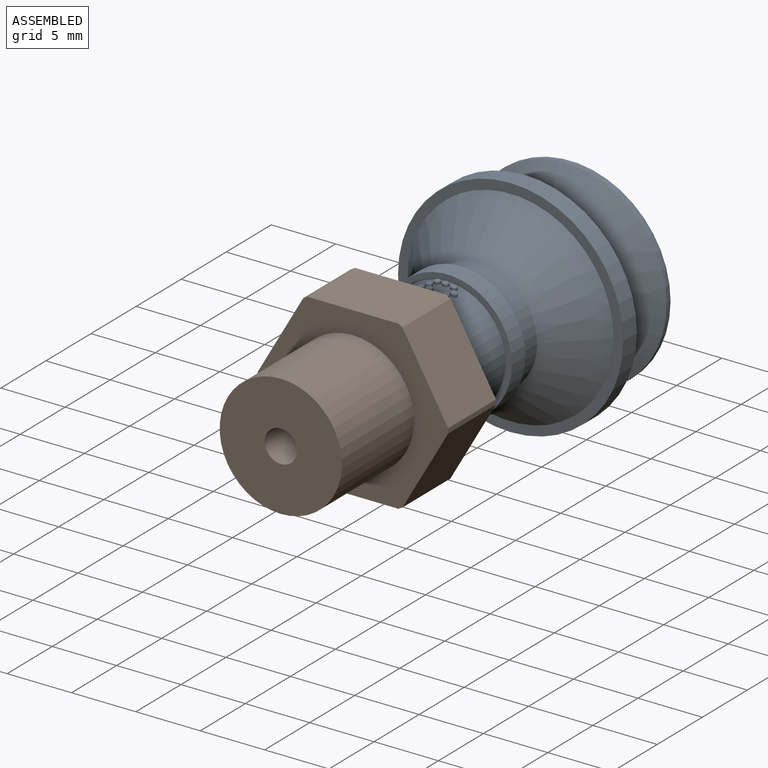
[diagram: assembled view]
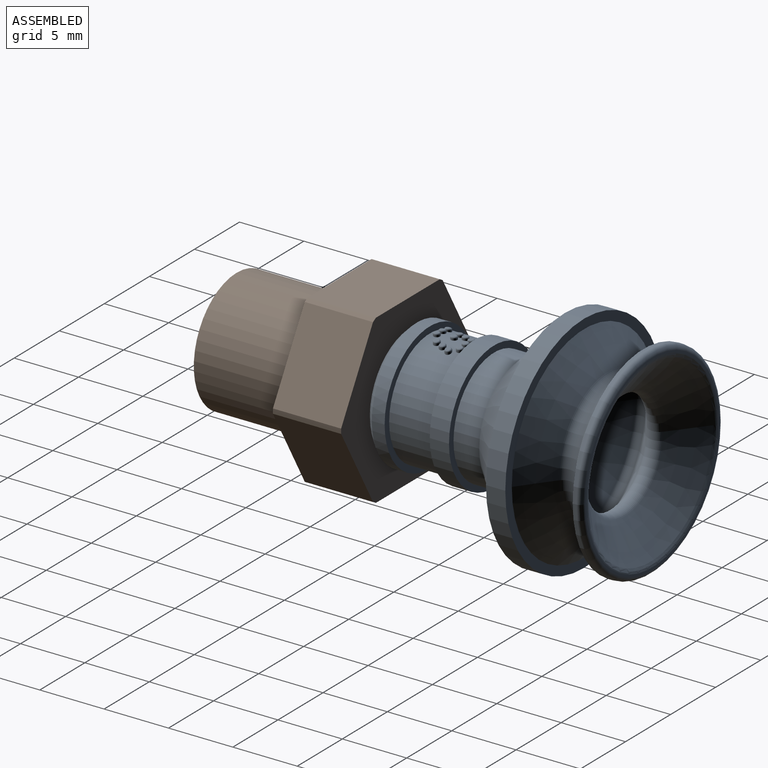
[diagram: assembled view, second angle]
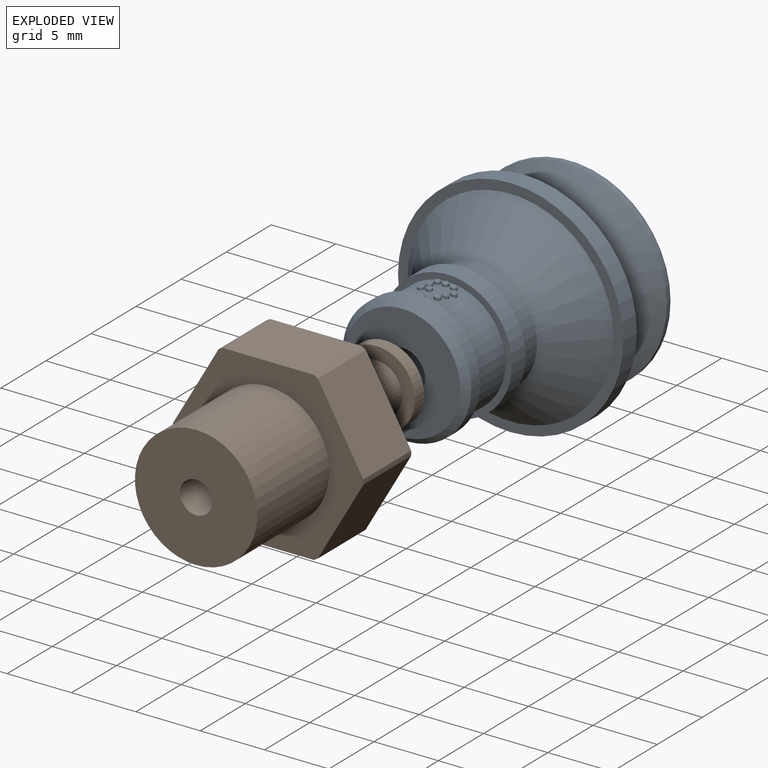
[diagram: exploded view]
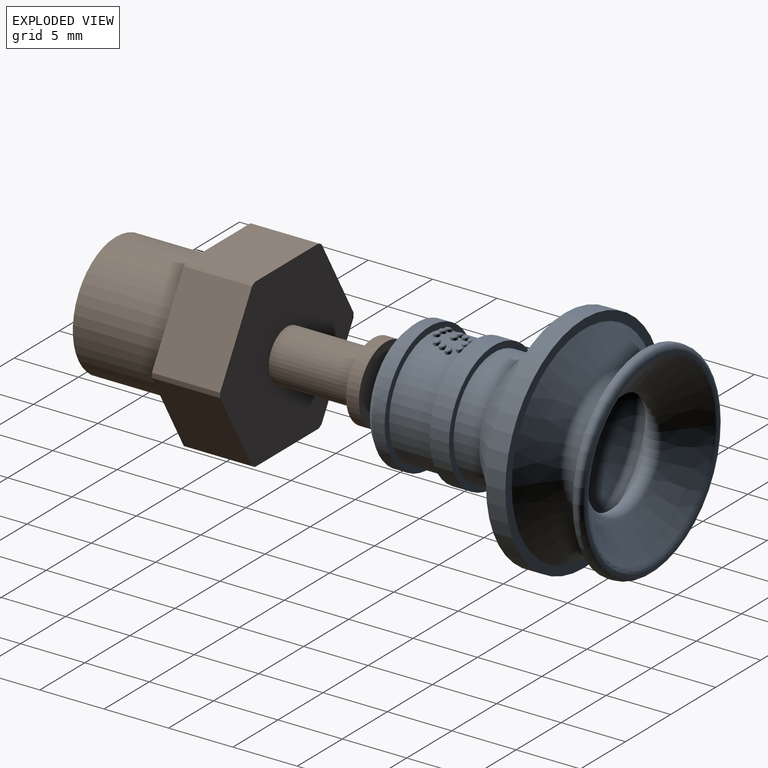
[diagram: exploded view, second angle]
ASSEMBLY  parts=2 mates=2
PART A: 78 faces, bbox 17.5x17.5x18.8 mm
  f0: torus R=6mm, axis (0,0,-1), area 52mm2, adj f31,f33
  f1: torus R=4.8mm, axis (0,0,-1), area 38.1mm2, adj f37,f40
  f2: bspline ~0.51x0.3mm, area 0.1mm2, adj f20,f60,f77
  f3: bspline ~0.5x0.27mm, area 0.1mm2, adj f21,f61,f76
  f4: bspline ~0.5x0.27mm, area 0.1mm2, adj f22,f62,f75
  f5: bspline ~0.5x0.27mm, area 0.1mm2, adj f23,f63,f74
  f6: bspline ~0.5x0.28mm, area 0.1mm2, adj f25,f65,f73
  f7: bspline ~0.5x0.26mm, area 0.1mm2, adj f16,f56,f72
  f8: bspline ~0.51x0.33mm, area 0.1mm2, adj f15,f55,f71
  f9: bspline ~0.51x0.32mm, area 0.1mm2, adj f17,f57,f70
  f10: bspline ~0.51x0.3mm, area 0.1mm2, adj f14,f54,f69
  f11: bspline ~0.5x0.25mm, area 0.1mm2, adj f18,f58,f68
  f12: bspline ~0.5x0.27mm, area 0.1mm2, adj f19,f59,f67
  f13: bspline ~0.5x0.29mm, area 0.1mm2, adj f24,f64,f66
  f14: cylinder r=0.25mm len=0.5mm, axis (0,1,0), area 0.2mm2, adj f10,f32,f69
  f15: cylinder r=0.25mm len=0.5mm, axis (0,1,0), area 0.2mm2, adj f8,f32,f71
  f16: cylinder r=0.25mm len=0.5mm, axis (0,1,0), area 0.2mm2, adj f7,f32,f72
  f17: cylinder r=0.25mm len=0.5mm, axis (0,1,0), area 0.2mm2, adj f9,f32,f70
  f18: cylinder r=0.25mm len=0.5mm, axis (0,1,0), area 0.2mm2, adj f11,f32,f68
  f19: cylinder r=0.25mm len=0.5mm, axis (0,1,0), area 0.2mm2, adj f12,f32,f67
  f20: cylinder r=0.25mm len=0.5mm, axis (0,1,0), area 0.2mm2, adj f2,f32,f77
  f21: cylinder r=0.25mm len=0.5mm, axis (0,1,0), area 0.2mm2, adj f3,f32,f76
  f22: cylinder r=0.25mm len=0.5mm, axis (0,1,0), area 0.2mm2, adj f4,f32,f75
  f23: cylinder r=0.25mm len=0.5mm, axis (0,1,0), area 0.2mm2, adj f5,f32,f74
  f24: cylinder r=0.25mm len=0.5mm, axis (0,1,0), area 0.2mm2, adj f13,f32,f66
  f25: cylinder r=0.25mm len=0.5mm, axis (0,1,0), area 0.2mm2, adj f6,f32,f73
  f26: cylinder r=1.75mm len=6.5mm, axis (0,0,-1), area 71.5mm2, adj f42,f46
  f27: cone r=8mm half-angle=45deg, axis (0,0,-1), area 194.4mm2, adj f28,f53
  f28: cylinder r=4.5mm len=9mm, axis (0,0,-1), area 56.5mm2, adj f27,f52
  f29: cylinder r=8.75mm len=17.5mm, axis (0,0,-1), area 82.5mm2, adj f51,f53
  f30: cylinder r=5mm len=10mm, axis (0,0,-1), area 47.1mm2, adj f50,f52
  f31: cone r=5.52mm half-angle=53.4deg, axis (0,0,1), area 132.8mm2, adj f0,f51
  f32: cylinder r=4.5mm len=9mm, axis (0,0,-1), area 96.9mm2, adj f14,f15,f16,f17,f18,f19,f20,f21
  f33: cone r=7.85mm half-angle=58deg, axis (0,0,-1), area 113.1mm2, adj f0,f35
  f34: cylinder r=5mm len=10mm, axis (0,0,-1), area 31.4mm2, adj f47,f48,f49
  f35: cylinder r=7.85mm len=15.7mm, axis (0,0,-1), area 14.8mm2, adj f33,f36
  f36: torus R=7.45mm, axis (0,0,-1), area 30.4mm2, adj f35,f45
  f37: cone r=4.31mm half-angle=52.2deg, axis (0,0,-1), area 117.6mm2, adj f1,f43,f44
  f38: cylinder r=3mm len=6mm, axis (0,0,-1), area 52.5mm2, adj f39,f42
  f39: cone r=3mm half-angle=54.5deg, axis (0,0,-1), area 170.3mm2, adj f38,f41
  f40: cone r=7.3mm half-angle=53.4deg, axis (0,0,1), area 135.2mm2, adj f1,f41
  f41: torus R=7mm, axis (0,0,-1), area 44mm2, adj f39,f40
  f42: plane 6x6mm, normal (0,0,-1), area 18.7mm2, adj f26,f38
  f43: revolved ~14.61x7.31mm, area 8.9mm2, adj f37,f44,f45
  f44: revolved ~14.61x7.31mm, area 8.9mm2, adj f37,f43,f45
  f45: plane 14.9x14.9mm, normal (0,0,-1), area 6.7mm2, adj f36,f43,f44
  f46: plane 9.01x9.01mm, normal (0,0,1), area 54mm2, adj f26,f47,f48
  f47: revolved ~10x5mm, area 10.6mm2, adj f34,f46,f48
  f48: revolved ~10x5mm, area 10.6mm2, adj f34,f46,f47
  f49: plane 10x10mm, normal (0,0,-1), area 14.9mm2, adj f32,f34
  f50: plane 10x10mm, normal (0,0,1), area 14.9mm2, adj f30,f32
  f51: plane 17.5x17.5mm, normal (0,0,-1), area 38.1mm2, adj f29,f31
  f52: plane 10x10mm, normal (0,0,-1), area 14.9mm2, adj f28,f30
  f53: plane 17.5x17.5mm, normal (0,0,1), area 39.5mm2, adj f27,f29
  f54: cylinder r=4.75mm len=0.31mm, axis (0,0,-1), area 0.1mm2, adj f10,f69
  f55: cylinder r=4.75mm len=0.31mm, axis (0,0,-1), area 0.1mm2, adj f8,f71
  f56: cylinder r=4.75mm len=0.31mm, axis (0,0,-1), area 0.1mm2, adj f7,f72
  f57: cylinder r=4.75mm len=0.31mm, axis (0,0,-1), area 0.1mm2, adj f9,f70
  f58: cylinder r=4.75mm len=0.31mm, axis (0,0,-1), area 0.1mm2, adj f11,f68
  f59: cylinder r=4.75mm len=0.31mm, axis (0,0,-1), area 0.1mm2, adj f12,f67
  f60: cylinder r=4.75mm len=0.31mm, axis (0,0,-1), area 0.1mm2, adj f2,f77
  f61: cylinder r=4.75mm len=0.31mm, axis (0,0,-1), area 0.1mm2, adj f3,f76
  f62: cylinder r=4.75mm len=0.31mm, axis (0,0,-1), area 0.1mm2, adj f4,f75
  f63: cylinder r=4.75mm len=0.31mm, axis (0,0,-1), area 0.1mm2, adj f5,f74
  f64: cylinder r=4.75mm len=0.31mm, axis (0,0,-1), area 0.1mm2, adj f13,f66
  f65: cylinder r=4.75mm len=0.31mm, axis (0,0,-1), area 0.1mm2, adj f6,f73
  f66: bspline ~0.51x0.32mm, area 0.1mm2, adj f13,f24,f64
  f67: bspline ~0.51x0.29mm, area 0.1mm2, adj f12,f19,f59
  f68: bspline ~0.5x0.25mm, area 0.1mm2, adj f11,f18,f58
  f69: bspline ~0.5x0.28mm, area 0.1mm2, adj f10,f14,f54
  f70: bspline ~0.5x0.29mm, area 0.1mm2, adj f9,f17,f57
  f71: bspline ~0.5x0.3mm, area 0.1mm2, adj f8,f15,f55
  f72: bspline ~0.5x0.26mm, area 0.1mm2, adj f7,f16,f56
  f73: bspline ~0.51x0.3mm, area 0.1mm2, adj f6,f25,f65
  f74: bspline ~0.51x0.29mm, area 0.1mm2, adj f5,f23,f63
  f75: bspline ~0.51x0.27mm, area 0.1mm2, adj f4,f22,f62
  f76: bspline ~0.5x0.26mm, area 0.1mm2, adj f3,f21,f61
  f77: bspline ~0.5x0.28mm, area 0.1mm2, adj f2,f20,f60
PART B: 21 faces, bbox 14.8x21x13 mm
  f0: cylinder r=4.75mm len=9.5mm, axis (0,-1,0), area 238.8mm2, adj f4,f20
  f1: cylinder r=1.25mm len=21mm, axis (0,-1,0), area 164.9mm2, adj f4,f19
  f2: cylinder r=3mm len=6mm, axis (0,-1,0), area 18.8mm2, adj f18,f19
  f3: cylinder r=2mm len=6.7mm, axis (0,-1,0), area 84.2mm2, adj f17,f18
  f4: plane 9.5x9.5mm, normal (0,-1,0), area 66mm2, adj f0,f1
  f5: cylinder r=7.4mm len=5.3mm, axis (0,-1,0), area 2mm2, adj f11,f16,f17,f20
  f6: cylinder r=7.4mm len=5.3mm, axis (0,-1,0), area 2mm2, adj f15,f16,f17,f20
  f7: cylinder r=7.4mm len=5.3mm, axis (0,-1,0), area 2mm2, adj f14,f15,f17,f20
  f8: cylinder r=7.4mm len=5.3mm, axis (0,-1,0), area 2mm2, adj f13,f14,f17,f20
  f9: cylinder r=7.4mm len=5.3mm, axis (0,-1,0), area 2mm2, adj f12,f13,f17,f20
  f10: cylinder r=7.4mm len=5.3mm, axis (0,-1,0), area 2mm2, adj f11,f12,f17,f20
  f11: plane 6.13x5.3mm, normal (0.87,0,0.5), area 37.5mm2, adj f5,f10,f17,f20
  f12: plane 7.07x5.3mm, normal (0,0,1), area 37.5mm2, adj f9,f10,f17,f20
  f13: plane 6.13x5.3mm, normal (-0.87,0,0.5), area 37.5mm2, adj f8,f9,f17,f20
  f14: plane 6.13x5.3mm, normal (-0.87,0,-0.5), area 37.5mm2, adj f7,f8,f17,f20
  f15: plane 7.07x5.3mm, normal (0,0,-1), area 37.5mm2, adj f6,f7,f17,f20
  f16: plane 6.13x5.3mm, normal (0.87,0,-0.5), area 37.5mm2, adj f5,f6,f17,f20
  f17: plane 14.8x13mm, normal (0,1,0), area 133.7mm2, adj f3,f5,f6,f7,f8,f9,f10,f11
  f18: plane 6x6mm, normal (0,-1,0), area 15.7mm2, adj f2,f3
  f19: plane 6x6mm, normal (0,1,0), area 23.4mm2, adj f1,f2
  f20: plane 14.8x13mm, normal (0,-1,0), area 75.4mm2, adj f0,f5,f6,f7,f8,f9,f10,f11
PLACE A rot(axis=(1,0,0),90deg) t=(-68.86,34.89,8.24)mm
PLACE B t=(-68.86,1.59,8.24)mm
MATE cylindrical A.f26 <-> B.f0  axis (0,1,0) through (-68.86,15.09,8.24)mm
MATE planar A.f31 <-> B.f0  axis (0,1,0) through (-68.86,21.59,8.24)mm
